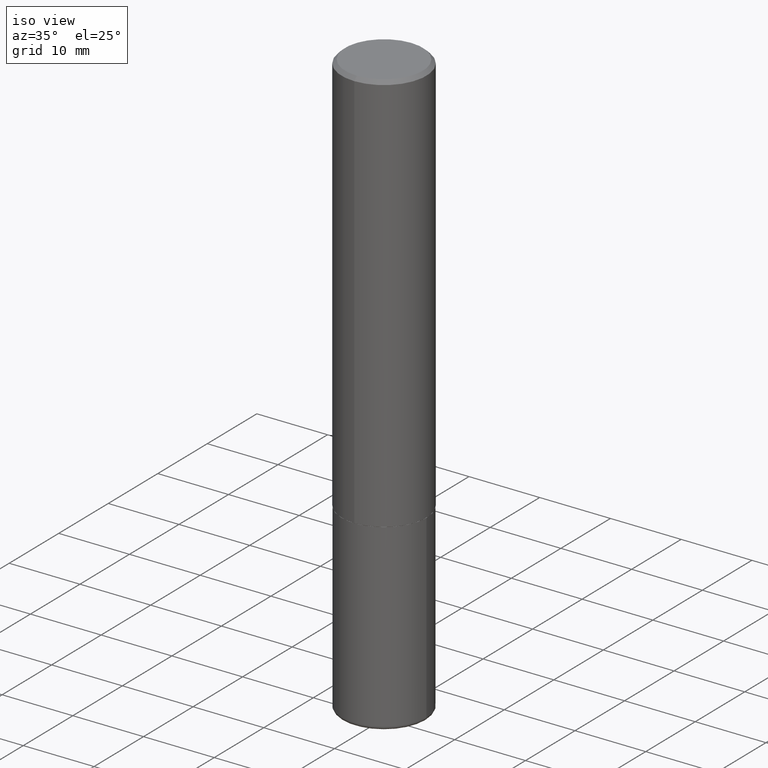
[diagram: clean part render]
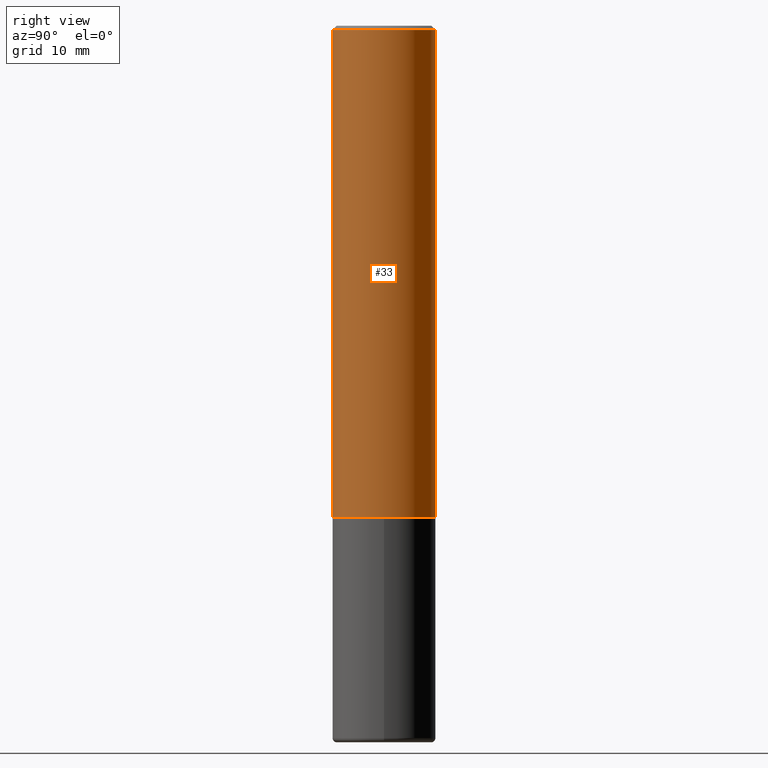
[diagram: tour spotlight — one face highlighted and labeled with its STEP entity id]
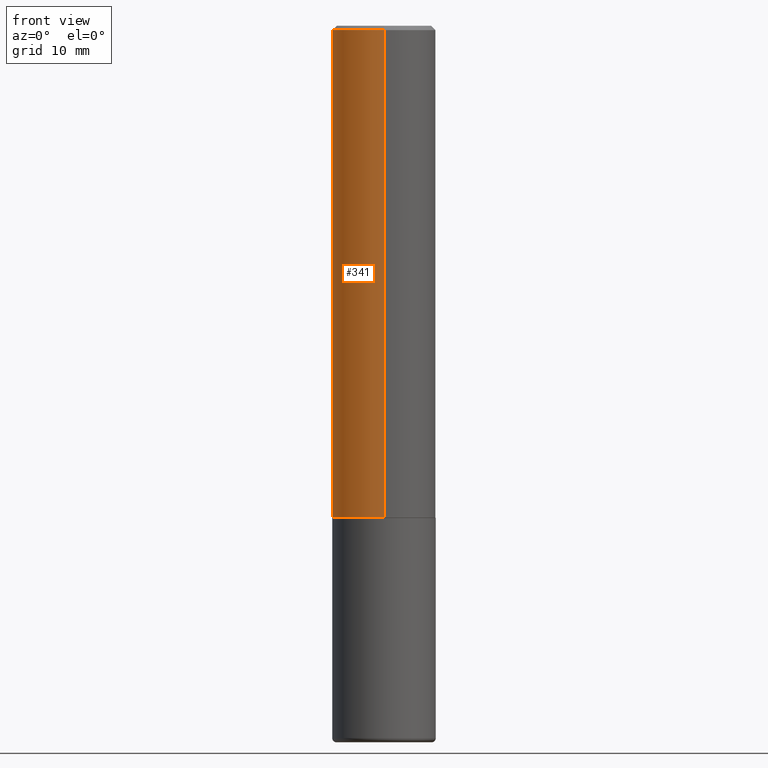
[diagram: tour spotlight — one face highlighted and labeled with its STEP entity id]
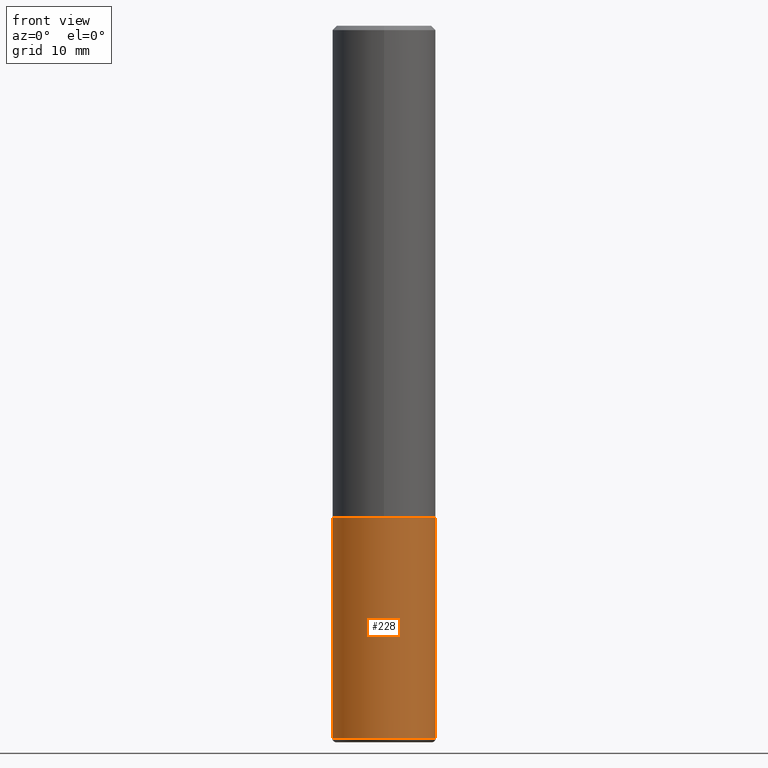
[diagram: tour spotlight — one face highlighted and labeled with its STEP entity id]
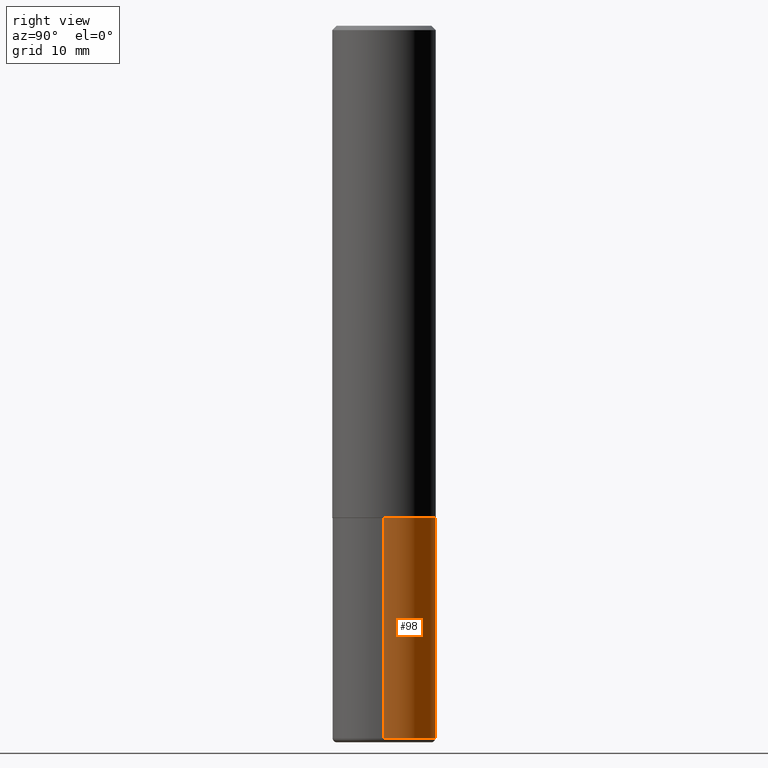
[diagram: tour spotlight — one face highlighted and labeled with its STEP entity id]
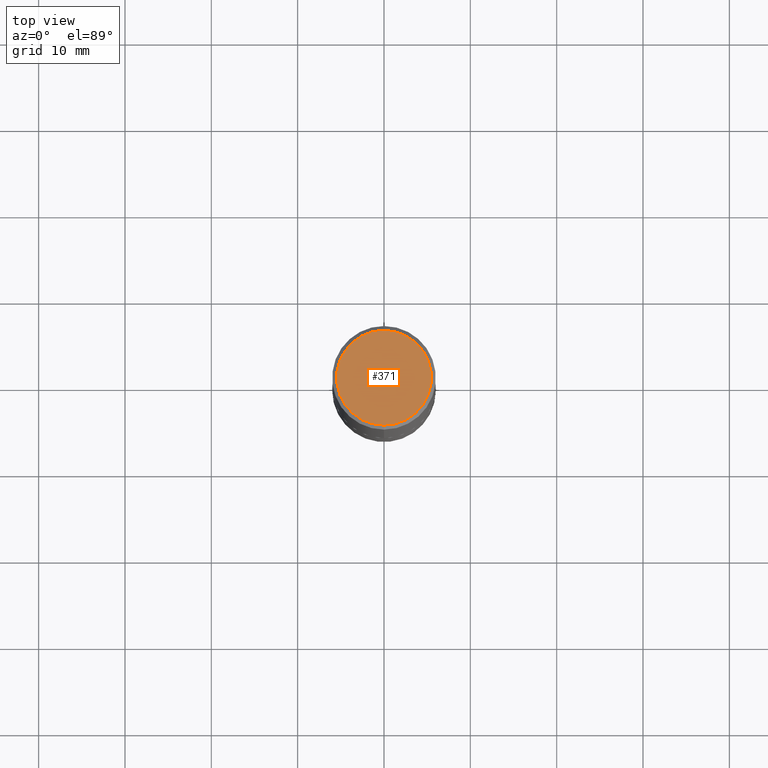
[diagram: tour spotlight — one face highlighted and labeled with its STEP entity id]
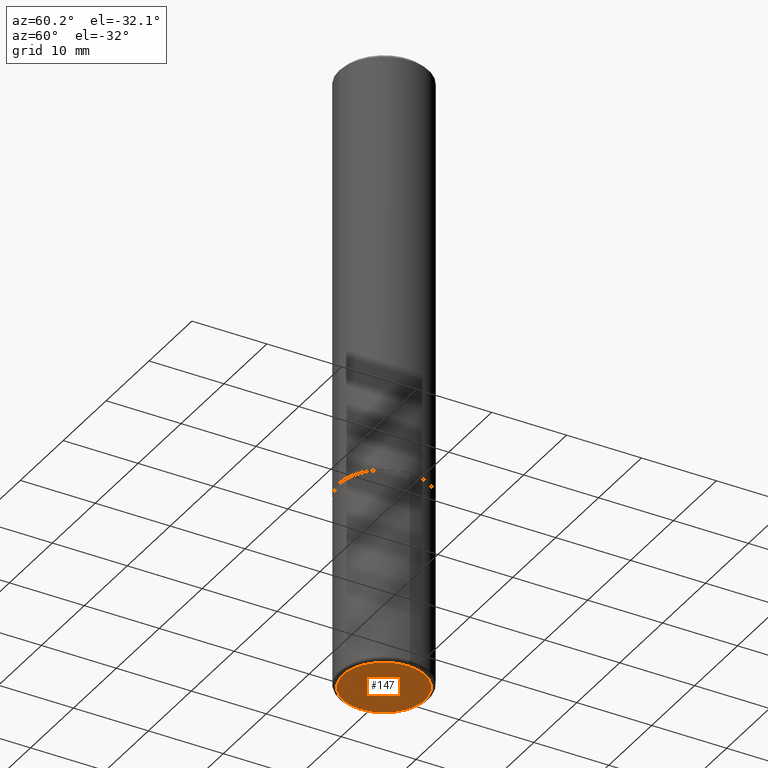
[diagram: tour spotlight — one face highlighted and labeled with its STEP entity id]
A machine part: a face-by-face anatomy tour. The part has 14 B-rep faces; the first image is the clean iso view, then the 6 largest visible faces are spotlighted one at a time (largest first), each with its STEP entity span.

Face 1 — right view, entity #33. In plain terms, the highlighted cylindrical surface (partial cylindrical patch) has radius 5.9995 mm, axis along (-0, 0, 1).
Definition (entity closure, byte-faithful):
#11 = VERTEX_POINT ( 'NONE', #71 ) ;
#18 = LINE ( 'NONE', #50, #407 ) ;
#33 = ADVANCED_FACE ( 'NONE', ( #229 ), #411, .T. ) ;
#37 = VERTEX_POINT ( 'NONE', #382 ) ;
#43 = DIRECTION ( 'NONE',  ( -2.445221809746292518E-29, 3.491835051801734308E-15, 1.000000000000000000 ) ) ;
#50 = CARTESIAN_POINT ( 'NONE',  ( -1.649375784469497117E-15, -0.2362000000000001598, 8.247714392355702416E-16 ) ) ;
#59 = CIRCLE ( 'NONE', #97, 0.2362000000000000766 ) ;
#60 = VERTEX_POINT ( 'NONE', #274 ) ;
#66 = EDGE_CURVE ( 'NONE', #11, #60, #59, .T. ) ;
#71 = CARTESIAN_POINT ( 'NONE',  ( -1.620449627073635473E-15, -0.2362000000000001321, -0.01999999999999922673 ) ) ;
#72 = AXIS2_PLACEMENT_3D ( 'NONE', #315, #262, #218 ) ;
#92 = EDGE_CURVE ( 'NONE', #37, #60, #180, .T. ) ;
#97 = AXIS2_PLACEMENT_3D ( 'NONE', #207, #43, #338 ) ;
#112 = AXIS2_PLACEMENT_3D ( 'NONE', #256, #297, #354 ) ;
#153 = DIRECTION ( 'NONE',  ( -2.445221809746292518E-29, 3.491835051801734702E-15, 1.000000000000000000 ) ) ;
#159 = VERTEX_POINT ( 'NONE', #336 ) ;
#174 = CIRCLE ( 'NONE', #72, 0.2362000000000002709 ) ;
#175 = CARTESIAN_POINT ( 'NONE',  ( 1.678301941865357577E-15, 0.2362000000000001598, -8.247714392355702416E-16 ) ) ;
#180 = LINE ( 'NONE', #175, #223 ) ;
#207 = CARTESIAN_POINT ( 'NONE',  ( 4.890443619492597157E-31, -6.983670103603485970E-17, -0.02000000000000005246 ) ) ;
#208 = DIRECTION ( 'NONE',  ( -2.445221809746292518E-29, 3.491835051801734702E-15, 1.000000000000000000 ) ) ;
#218 = DIRECTION ( 'NONE',  ( -6.982962677686265922E-15, -1.000000000000000000, 3.469747663417773058E-15 ) ) ;
#221 = ORIENTED_EDGE ( 'NONE', *, *, #66, .F. ) ;
#223 = VECTOR ( 'NONE', #208, 39.37007874015748143 ) ;
#229 = FACE_OUTER_BOUND ( 'NONE', #397, .T. ) ;
#233 = ORIENTED_EDGE ( 'NONE', *, *, #303, .F. ) ;
#256 = CARTESIAN_POINT ( 'NONE',  ( 0.000000000000000000, 0.000000000000000000, 0.000000000000000000 ) ) ;
#262 = DIRECTION ( 'NONE',  ( -2.445221809746292518E-29, 3.491835051801734308E-15, 1.000000000000000000 ) ) ;
#274 = CARTESIAN_POINT ( 'NONE',  ( 1.649375784469496920E-15, 0.2361999999999999933, -0.02000000000000087472 ) ) ;
#291 = ORIENTED_EDGE ( 'NONE', *, *, #295, .T. ) ;
#295 = EDGE_CURVE ( 'NONE', #159, #37, #174, .T. ) ;
#297 = DIRECTION ( 'NONE',  ( -2.445221809746292518E-29, 3.491835051801734308E-15, 1.000000000000000000 ) ) ;
#303 = EDGE_CURVE ( 'NONE', #159, #11, #18, .T. ) ;
#315 = CARTESIAN_POINT ( 'NONE',  ( 5.484877041441908919E-29, -7.832535204696471708E-15, -2.243100000000000094 ) ) ;
#336 = CARTESIAN_POINT ( 'NONE',  ( -1.649375784469443080E-15, -0.2362000000000080979, -2.243099999999999206 ) ) ;
#338 = DIRECTION ( 'NONE',  ( -6.982962677686265922E-15, -1.000000000000000000, 3.487819265831410167E-15 ) ) ;
#347 = ORIENTED_EDGE ( 'NONE', *, *, #92, .T. ) ;
#354 = DIRECTION ( 'NONE',  ( -6.982962677686265922E-15, -1.000000000000000000, 3.491835051801734308E-15 ) ) ;
#382 = CARTESIAN_POINT ( 'NONE',  ( 1.678301941865385779E-15, 0.2361999999999924715, -2.243100000000000982 ) ) ;
#397 = EDGE_LOOP ( 'NONE', ( #291, #347, #221, #233 ) ) ;
#407 = VECTOR ( 'NONE', #153, 39.37007874015748143 ) ;
#411 = CYLINDRICAL_SURFACE ( 'NONE', #112, 0.2362000000000001598 ) ;

Face 2 — front view, entity #341. In plain terms, the highlighted cylindrical surface (partial cylindrical patch) has radius 5.9995 mm, axis along (-0, 0, 1).
Definition (entity closure, byte-faithful):
#11 = VERTEX_POINT ( 'NONE', #71 ) ;
#18 = LINE ( 'NONE', #50, #407 ) ;
#22 = AXIS2_PLACEMENT_3D ( 'NONE', #417, #260, #138 ) ;
#37 = VERTEX_POINT ( 'NONE', #382 ) ;
#49 = CIRCLE ( 'NONE', #231, 0.2362000000000002709 ) ;
#50 = CARTESIAN_POINT ( 'NONE',  ( -1.649375784469497117E-15, -0.2362000000000001598, 8.247714392355702416E-16 ) ) ;
#58 = EDGE_CURVE ( 'NONE', #60, #11, #137, .T. ) ;
#60 = VERTEX_POINT ( 'NONE', #274 ) ;
#71 = CARTESIAN_POINT ( 'NONE',  ( -1.620449627073635473E-15, -0.2362000000000001321, -0.01999999999999922673 ) ) ;
#89 = CARTESIAN_POINT ( 'NONE',  ( 0.000000000000000000, 0.000000000000000000, 0.000000000000000000 ) ) ;
#92 = EDGE_CURVE ( 'NONE', #37, #60, #180, .T. ) ;
#99 = AXIS2_PLACEMENT_3D ( 'NONE', #89, #385, #324 ) ;
#137 = CIRCLE ( 'NONE', #22, 0.2362000000000000766 ) ;
#138 = DIRECTION ( 'NONE',  ( -6.982962677686265922E-15, -1.000000000000000000, 3.487819265831410167E-15 ) ) ;
#153 = DIRECTION ( 'NONE',  ( -2.445221809746292518E-29, 3.491835051801734702E-15, 1.000000000000000000 ) ) ;
#159 = VERTEX_POINT ( 'NONE', #336 ) ;
#162 = EDGE_LOOP ( 'NONE', ( #393, #358, #317, #227 ) ) ;
#175 = CARTESIAN_POINT ( 'NONE',  ( 1.678301941865357577E-15, 0.2362000000000001598, -8.247714392355702416E-16 ) ) ;
#180 = LINE ( 'NONE', #175, #223 ) ;
#183 = DIRECTION ( 'NONE',  ( -2.445221809746292518E-29, 3.491835051801734308E-15, 1.000000000000000000 ) ) ;
#208 = DIRECTION ( 'NONE',  ( -2.445221809746292518E-29, 3.491835051801734702E-15, 1.000000000000000000 ) ) ;
#223 = VECTOR ( 'NONE', #208, 39.37007874015748143 ) ;
#227 = ORIENTED_EDGE ( 'NONE', *, *, #58, .F. ) ;
#231 = AXIS2_PLACEMENT_3D ( 'NONE', #343, #183, #346 ) ;
#255 = CYLINDRICAL_SURFACE ( 'NONE', #99, 0.2362000000000001598 ) ;
#259 = FACE_OUTER_BOUND ( 'NONE', #162, .T. ) ;
#260 = DIRECTION ( 'NONE',  ( -2.445221809746292518E-29, 3.491835051801734308E-15, 1.000000000000000000 ) ) ;
#274 = CARTESIAN_POINT ( 'NONE',  ( 1.649375784469496920E-15, 0.2361999999999999933, -0.02000000000000087472 ) ) ;
#303 = EDGE_CURVE ( 'NONE', #159, #11, #18, .T. ) ;
#317 = ORIENTED_EDGE ( 'NONE', *, *, #303, .T. ) ;
#324 = DIRECTION ( 'NONE',  ( -6.982962677686265922E-15, -1.000000000000000000, 3.491835051801734308E-15 ) ) ;
#336 = CARTESIAN_POINT ( 'NONE',  ( -1.649375784469443080E-15, -0.2362000000000080979, -2.243099999999999206 ) ) ;
#341 = ADVANCED_FACE ( 'NONE', ( #259 ), #255, .T. ) ;
#343 = CARTESIAN_POINT ( 'NONE',  ( 5.484877041441908919E-29, -7.832535204696471708E-15, -2.243100000000000094 ) ) ;
#346 = DIRECTION ( 'NONE',  ( -6.982962677686265922E-15, -1.000000000000000000, 3.469747663417773058E-15 ) ) ;
#358 = ORIENTED_EDGE ( 'NONE', *, *, #412, .T. ) ;
#382 = CARTESIAN_POINT ( 'NONE',  ( 1.678301941865385779E-15, 0.2361999999999924715, -2.243100000000000982 ) ) ;
#385 = DIRECTION ( 'NONE',  ( -2.445221809746292518E-29, 3.491835051801734308E-15, 1.000000000000000000 ) ) ;
#393 = ORIENTED_EDGE ( 'NONE', *, *, #92, .F. ) ;
#407 = VECTOR ( 'NONE', #153, 39.37007874015748143 ) ;
#412 = EDGE_CURVE ( 'NONE', #37, #159, #49, .T. ) ;
#417 = CARTESIAN_POINT ( 'NONE',  ( 4.890443619492597157E-31, -6.983670103603485970E-17, -0.02000000000000005246 ) ) ;

Face 3 — front view, entity #228. In plain terms, the highlighted cylindrical surface (partial cylindrical patch) has radius 5.9995 mm, axis along (-0, 0, 1).
Definition (entity closure, byte-faithful):
#7 = DIRECTION ( 'NONE',  ( -2.445468806185136597E-29, 3.491481338843145583E-15, 1.000000000000000000 ) ) ;
#23 = AXIS2_PLACEMENT_3D ( 'NONE', #248, #85, #211 ) ;
#24 = VERTEX_POINT ( 'NONE', #236 ) ;
#27 = EDGE_CURVE ( 'NONE', #243, #24, #124, .T. ) ;
#32 = LINE ( 'NONE', #94, #286 ) ;
#54 = EDGE_CURVE ( 'NONE', #243, #139, #32, .T. ) ;
#82 = CARTESIAN_POINT ( 'NONE',  ( -0.2361999999999999933, -7.909480388664863981E-15, -2.244100000000000428 ) ) ;
#83 = ORIENTED_EDGE ( 'NONE', *, *, #398, .F. ) ;
#85 = DIRECTION ( 'NONE',  ( -2.445468806185136597E-29, 3.491481338843145583E-15, 1.000000000000000000 ) ) ;
#87 = AXIS2_PLACEMENT_3D ( 'NONE', #319, #165, #389 ) ;
#94 = CARTESIAN_POINT ( 'NONE',  ( -0.2361999999999999933, 1.678301941865356591E-15, -1.161852468318208757E-29 ) ) ;
#106 = ORIENTED_EDGE ( 'NONE', *, *, #27, .T. ) ;
#107 = AXIS2_PLACEMENT_3D ( 'NONE', #143, #7, #403 ) ;
#124 = CIRCLE ( 'NONE', #87, 0.2361999999999999933 ) ;
#126 = EDGE_CURVE ( 'NONE', #24, #353, #202, .T. ) ;
#131 = DIRECTION ( 'NONE',  ( -2.445468806185136877E-29, 3.491481338843145188E-15, 1.000000000000000000 ) ) ;
#139 = VERTEX_POINT ( 'NONE', #82 ) ;
#143 = CARTESIAN_POINT ( 'NONE',  ( 0.000000000000000000, 0.000000000000000000, 0.000000000000000000 ) ) ;
#150 = ORIENTED_EDGE ( 'NONE', *, *, #126, .T. ) ;
#165 = DIRECTION ( 'NONE',  ( -2.445468806185136597E-29, 3.491481338843145583E-15, 1.000000000000000000 ) ) ;
#173 = CYLINDRICAL_SURFACE ( 'NONE', #107, 0.2361999999999999933 ) ;
#176 = CARTESIAN_POINT ( 'NONE',  ( 0.2361999999999999933, -1.649375784469496131E-15, 1.151752954443000088E-29 ) ) ;
#202 = LINE ( 'NONE', #176, #242 ) ;
#211 = DIRECTION ( 'NONE',  ( 1.000000000000000000, -6.982962677686269077E-15, 0.000000000000000000 ) ) ;
#225 = CARTESIAN_POINT ( 'NONE',  ( 0.2361999999999999933, -9.484609056967400443E-15, -2.244100000000000428 ) ) ;
#228 = ADVANCED_FACE ( 'NONE', ( #282 ), #173, .T. ) ;
#236 = CARTESIAN_POINT ( 'NONE',  ( 0.2361999999999997990, -1.298970717303203178E-14, -3.248000000000000220 ) ) ;
#242 = VECTOR ( 'NONE', #309, 39.37007874015748143 ) ;
#243 = VERTEX_POINT ( 'NONE', #395 ) ;
#247 = ORIENTED_EDGE ( 'NONE', *, *, #54, .F. ) ;
#248 = CARTESIAN_POINT ( 'NONE',  ( 5.487876547960065873E-29, -7.835233272497903917E-15, -2.244100000000000428 ) ) ;
#270 = CIRCLE ( 'NONE', #23, 0.2361999999999999933 ) ;
#282 = FACE_OUTER_BOUND ( 'NONE', #391, .T. ) ;
#286 = VECTOR ( 'NONE', #131, 39.37007874015748143 ) ;
#309 = DIRECTION ( 'NONE',  ( -2.445468806185136877E-29, 3.491481338843145188E-15, 1.000000000000000000 ) ) ;
#319 = CARTESIAN_POINT ( 'NONE',  ( 7.942882682489324976E-29, -1.134033138856253841E-14, -3.248000000000000220 ) ) ;
#353 = VERTEX_POINT ( 'NONE', #225 ) ;
#389 = DIRECTION ( 'NONE',  ( 1.000000000000000000, -6.982962677686265133E-15, 0.000000000000000000 ) ) ;
#391 = EDGE_LOOP ( 'NONE', ( #247, #106, #150, #83 ) ) ;
#395 = CARTESIAN_POINT ( 'NONE',  ( -0.2361999999999997990, -9.662029446697183595E-15, -3.248000000000000220 ) ) ;
#398 = EDGE_CURVE ( 'NONE', #139, #353, #270, .T. ) ;
#403 = DIRECTION ( 'NONE',  ( 1.000000000000000000, -6.982962677686266711E-15, 4.876176775795936353E-29 ) ) ;

Face 4 — right view, entity #98. In plain terms, the highlighted cylindrical surface (partial cylindrical patch) has radius 5.9995 mm, axis along (-0, 0, 1).
Definition (entity closure, byte-faithful):
#24 = VERTEX_POINT ( 'NONE', #236 ) ;
#32 = LINE ( 'NONE', #94, #286 ) ;
#35 = AXIS2_PLACEMENT_3D ( 'NONE', #375, #269, #337 ) ;
#38 = DIRECTION ( 'NONE',  ( 1.000000000000000000, -6.982962677686269077E-15, 0.000000000000000000 ) ) ;
#45 = CARTESIAN_POINT ( 'NONE',  ( 7.942882682489324976E-29, -1.134033138856253841E-14, -3.248000000000000220 ) ) ;
#46 = ORIENTED_EDGE ( 'NONE', *, *, #126, .F. ) ;
#54 = EDGE_CURVE ( 'NONE', #243, #139, #32, .T. ) ;
#63 = EDGE_CURVE ( 'NONE', #353, #139, #390, .T. ) ;
#82 = CARTESIAN_POINT ( 'NONE',  ( -0.2361999999999999933, -7.909480388664863981E-15, -2.244100000000000428 ) ) ;
#94 = CARTESIAN_POINT ( 'NONE',  ( -0.2361999999999999933, 1.678301941865356591E-15, -1.161852468318208757E-29 ) ) ;
#98 = ADVANCED_FACE ( 'NONE', ( #372 ), #334, .T. ) ;
#126 = EDGE_CURVE ( 'NONE', #24, #353, #202, .T. ) ;
#131 = DIRECTION ( 'NONE',  ( -2.445468806185136877E-29, 3.491481338843145188E-15, 1.000000000000000000 ) ) ;
#139 = VERTEX_POINT ( 'NONE', #82 ) ;
#146 = CIRCLE ( 'NONE', #367, 0.2361999999999999933 ) ;
#154 = ORIENTED_EDGE ( 'NONE', *, *, #63, .F. ) ;
#176 = CARTESIAN_POINT ( 'NONE',  ( 0.2361999999999999933, -1.649375784469496131E-15, 1.151752954443000088E-29 ) ) ;
#202 = LINE ( 'NONE', #176, #242 ) ;
#209 = EDGE_CURVE ( 'NONE', #24, #243, #146, .T. ) ;
#210 = ORIENTED_EDGE ( 'NONE', *, *, #54, .T. ) ;
#225 = CARTESIAN_POINT ( 'NONE',  ( 0.2361999999999999933, -9.484609056967400443E-15, -2.244100000000000428 ) ) ;
#236 = CARTESIAN_POINT ( 'NONE',  ( 0.2361999999999997990, -1.298970717303203178E-14, -3.248000000000000220 ) ) ;
#239 = DIRECTION ( 'NONE',  ( 1.000000000000000000, -6.982962677686265133E-15, 0.000000000000000000 ) ) ;
#242 = VECTOR ( 'NONE', #309, 39.37007874015748143 ) ;
#243 = VERTEX_POINT ( 'NONE', #395 ) ;
#245 = CARTESIAN_POINT ( 'NONE',  ( 5.487876547960065873E-29, -7.835233272497903917E-15, -2.244100000000000428 ) ) ;
#269 = DIRECTION ( 'NONE',  ( -2.445468806185136597E-29, 3.491481338843145583E-15, 1.000000000000000000 ) ) ;
#286 = VECTOR ( 'NONE', #131, 39.37007874015748143 ) ;
#309 = DIRECTION ( 'NONE',  ( -2.445468806185136877E-29, 3.491481338843145188E-15, 1.000000000000000000 ) ) ;
#331 = AXIS2_PLACEMENT_3D ( 'NONE', #245, #368, #38 ) ;
#334 = CYLINDRICAL_SURFACE ( 'NONE', #35, 0.2361999999999999933 ) ;
#337 = DIRECTION ( 'NONE',  ( 1.000000000000000000, -6.982962677686266711E-15, 4.876176775795936353E-29 ) ) ;
#350 = EDGE_LOOP ( 'NONE', ( #405, #210, #154, #46 ) ) ;
#353 = VERTEX_POINT ( 'NONE', #225 ) ;
#366 = DIRECTION ( 'NONE',  ( -2.445468806185136597E-29, 3.491481338843145583E-15, 1.000000000000000000 ) ) ;
#367 = AXIS2_PLACEMENT_3D ( 'NONE', #45, #366, #239 ) ;
#368 = DIRECTION ( 'NONE',  ( -2.445468806185136597E-29, 3.491481338843145583E-15, 1.000000000000000000 ) ) ;
#372 = FACE_OUTER_BOUND ( 'NONE', #350, .T. ) ;
#375 = CARTESIAN_POINT ( 'NONE',  ( 0.000000000000000000, 0.000000000000000000, 0.000000000000000000 ) ) ;
#390 = CIRCLE ( 'NONE', #331, 0.2361999999999999933 ) ;
#395 = CARTESIAN_POINT ( 'NONE',  ( -0.2361999999999997990, -9.662029446697183595E-15, -3.248000000000000220 ) ) ;
#405 = ORIENTED_EDGE ( 'NONE', *, *, #209, .T. ) ;

Face 5 — top view, entity #371. In plain terms, the highlighted planar face has unit normal (0, -0, -1).
Definition (entity closure, byte-faithful):
#1 = AXIS2_PLACEMENT_3D ( 'NONE', #394, #118, #313 ) ;
#29 = CARTESIAN_POINT ( 'NONE',  ( 1.579546157692633621E-15, 0.2161999999999999478, -6.694880156558795861E-16 ) ) ;
#51 = ORIENTED_EDGE ( 'NONE', *, *, #168, .T. ) ;
#64 = ORIENTED_EDGE ( 'NONE', *, *, #333, .T. ) ;
#90 = CARTESIAN_POINT ( 'NONE',  ( -2.089361895350857775E-45, 2.983658608395124733E-31, 8.544672254365514246E-17 ) ) ;
#91 = EDGE_LOOP ( 'NONE', ( #64, #51 ) ) ;
#100 = VERTEX_POINT ( 'NONE', #171 ) ;
#118 = DIRECTION ( 'NONE',  ( -2.445221809746292518E-29, 3.491835051801734308E-15, 1.000000000000000000 ) ) ;
#132 = DIRECTION ( 'NONE',  ( 6.982962677686265922E-15, 1.000000000000000000, -3.491835051801734702E-15 ) ) ;
#158 = CARTESIAN_POINT ( 'NONE',  ( 1.509716530915770323E-15, 0.2161999999999999478, -7.122113769277070896E-16 ) ) ;
#168 = EDGE_CURVE ( 'NONE', #100, #254, #361, .T. ) ;
#171 = CARTESIAN_POINT ( 'NONE',  ( -1.551844647095920142E-15, -0.2161999999999999478, 8.403814607431897971E-16 ) ) ;
#186 = PLANE ( 'NONE',  #387 ) ;
#192 = FACE_OUTER_BOUND ( 'NONE', #91, .T. ) ;
#254 = VERTEX_POINT ( 'NONE', #29 ) ;
#279 = AXIS2_PLACEMENT_3D ( 'NONE', #90, #408, #410 ) ;
#313 = DIRECTION ( 'NONE',  ( -6.982962677686265922E-15, -1.000000000000000000, 3.491835051801733913E-15 ) ) ;
#333 = EDGE_CURVE ( 'NONE', #254, #100, #416, .T. ) ;
#361 = CIRCLE ( 'NONE', #1, 0.2161999999999999478 ) ;
#371 = ADVANCED_FACE ( 'NONE', ( #192 ), #186, .F. ) ;
#387 = AXIS2_PLACEMENT_3D ( 'NONE', #158, #404, #132 ) ;
#394 = CARTESIAN_POINT ( 'NONE',  ( -2.089361895350857775E-45, 2.983658608395124733E-31, 8.544672254365514246E-17 ) ) ;
#404 = DIRECTION ( 'NONE',  ( 2.445221809746291958E-29, -3.491835051801734702E-15, -1.000000000000000000 ) ) ;
#408 = DIRECTION ( 'NONE',  ( -2.445221809746292518E-29, 3.491835051801734308E-15, 1.000000000000000000 ) ) ;
#410 = DIRECTION ( 'NONE',  ( -6.982962677686265922E-15, -1.000000000000000000, 3.491835051801733913E-15 ) ) ;
#416 = CIRCLE ( 'NONE', #279, 0.2161999999999999478 ) ;

Face 6 — auxiliary view, entity #147. In plain terms, the highlighted planar face has unit normal (0, -0, -1).
Definition (entity closure, byte-faithful):
#3 = DIRECTION ( 'NONE',  ( -1.000000000000000000, 6.982962677686265922E-15, -4.876176775795935793E-29 ) ) ;
#10 = CARTESIAN_POINT ( 'NONE',  ( 7.991058417971169471E-29, -1.140911357093774486E-14, -3.267699999999999605 ) ) ;
#13 = AXIS2_PLACEMENT_3D ( 'NONE', #93, #348, #55 ) ;
#40 = CIRCLE ( 'NONE', #13, 0.2164999999999999980 ) ;
#55 = DIRECTION ( 'NONE',  ( 1.000000000000000000, -6.982962677686267499E-15, 0.000000000000000000 ) ) ;
#93 = CARTESIAN_POINT ( 'NONE',  ( 7.991058417971169471E-29, -1.140911357093774486E-14, -3.267699999999999605 ) ) ;
#103 = AXIS2_PLACEMENT_3D ( 'NONE', #10, #144, #109 ) ;
#109 = DIRECTION ( 'NONE',  ( 1.000000000000000000, -6.982962677686267499E-15, 0.000000000000000000 ) ) ;
#115 = CARTESIAN_POINT ( 'NONE',  ( -0.2164999999999999980, -9.766408997357156869E-15, -3.267699999999999605 ) ) ;
#119 = ORIENTED_EDGE ( 'NONE', *, *, #272, .F. ) ;
#141 = CARTESIAN_POINT ( 'NONE',  ( 0.2164999999999999980, -1.292092499065682217E-14, -3.267699999999999605 ) ) ;
#144 = DIRECTION ( 'NONE',  ( -2.445468806185136597E-29, 3.491481338843145583E-15, 1.000000000000000000 ) ) ;
#147 = ADVANCED_FACE ( 'NONE', ( #307 ), #306, .T. ) ;
#156 = VERTEX_POINT ( 'NONE', #141 ) ;
#177 = EDGE_CURVE ( 'NONE', #200, #156, #265, .T. ) ;
#184 = EDGE_LOOP ( 'NONE', ( #119, #380 ) ) ;
#200 = VERTEX_POINT ( 'NONE', #115 ) ;
#222 = AXIS2_PLACEMENT_3D ( 'NONE', #276, #271, #3 ) ;
#265 = CIRCLE ( 'NONE', #103, 0.2164999999999999980 ) ;
#271 = DIRECTION ( 'NONE',  ( 2.438088387897960049E-29, -3.491481338843145188E-15, -1.000000000000000000 ) ) ;
#272 = EDGE_CURVE ( 'NONE', #156, #200, #40, .T. ) ;
#276 = CARTESIAN_POINT ( 'NONE',  ( 1.374957371002732032E-28, -3.162591918377267000E-15, -3.267699999999999605 ) ) ;
#306 = PLANE ( 'NONE',  #222 ) ;
#307 = FACE_OUTER_BOUND ( 'NONE', #184, .T. ) ;
#348 = DIRECTION ( 'NONE',  ( -2.445468806185136597E-29, 3.491481338843145583E-15, 1.000000000000000000 ) ) ;
#380 = ORIENTED_EDGE ( 'NONE', *, *, #177, .F. ) ;